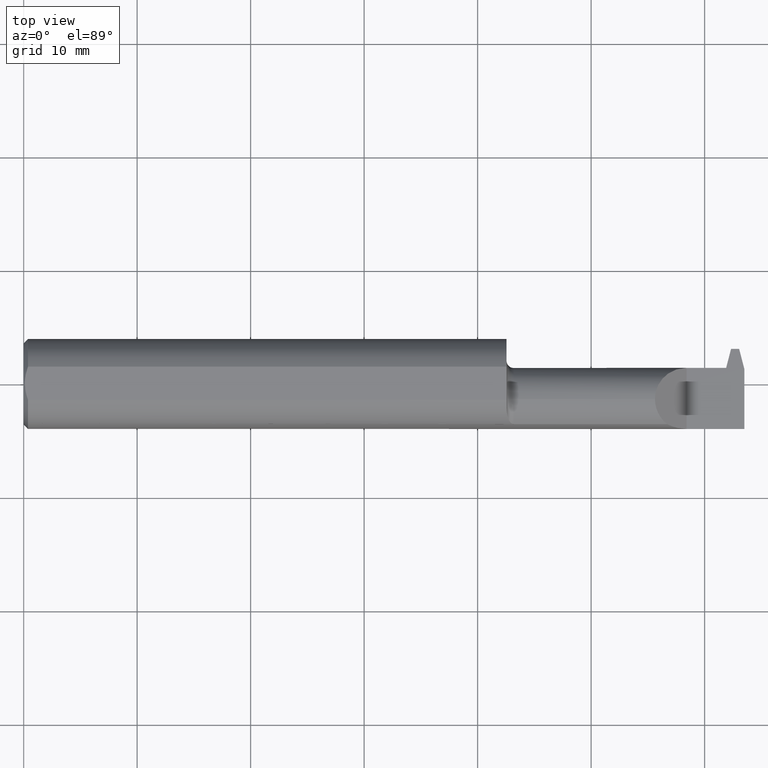
[diagram: clean part render]
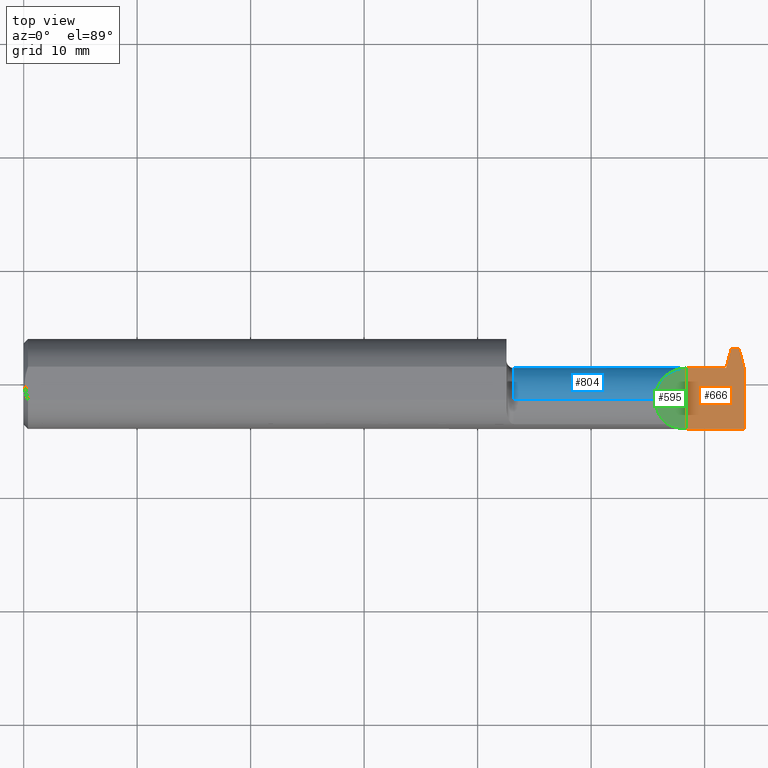
[diagram: same view with three faces highlighted in distinct colors, each labeled with its STEP entity id]
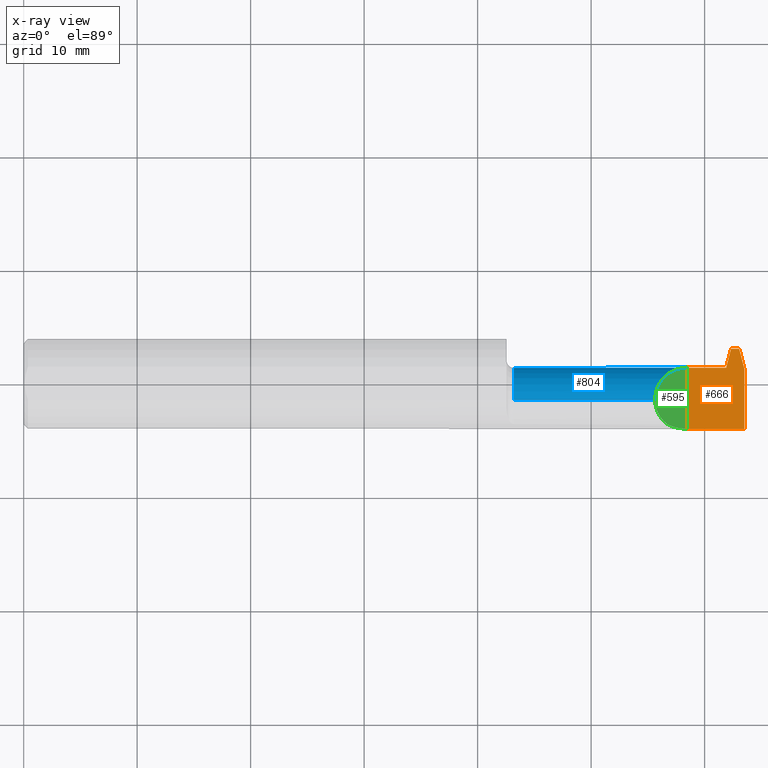
[diagram: x-ray of the same camera — body ghosted, the three highlighted faces saturated]
A machine part, top view with three faces highlighted in distinct colors.
The next image is the same camera in x-ray (body ghosted, the three faces saturated) — at least one of them is partly hidden behind the body in this view.
Their STEP definitions:

[orange] entity #666 — the highlighted planar face has unit normal (-0, 0, -1).
#8 = ORIENTED_EDGE ( 'NONE', *, *, #47, .T. ) ;
#19 = CARTESIAN_POINT ( 'NONE',  ( 2.476310413144170663, 0.1438999999999999724, 0.000000000000000000 ) ) ;
#33 = VECTOR ( 'NONE', #264, 39.37007874015748143 ) ;
#41 = EDGE_CURVE ( 'NONE', #180, #176, #98, .T. ) ;
#42 = LINE ( 'NONE', #484, #33 ) ;
#46 = VECTOR ( 'NONE', #415, 39.37007874015748143 ) ;
#47 = EDGE_CURVE ( 'NONE', #709, #176, #396, .T. ) ;
#59 = VECTOR ( 'NONE', #188, 39.37007874015748143 ) ;
#79 = CARTESIAN_POINT ( 'NONE',  ( 1.675000000000000044, 0.05590000000000001218, -3.918740332231607202E-17 ) ) ;
#98 = LINE ( 'NONE', #376, #457 ) ;
#106 = DIRECTION ( 'NONE',  ( -1.000000000000000000, 0.000000000000000000, 0.000000000000000000 ) ) ;
#116 = DIRECTION ( 'NONE',  ( 0.2503800040544368333, 0.9681476403781088536, -0.000000000000000000 ) ) ;
#122 = LINE ( 'NONE', #552, #610 ) ;
#139 = ORIENTED_EDGE ( 'NONE', *, *, #313, .T. ) ;
#142 = EDGE_CURVE ( 'NONE', #902, #265, #122, .T. ) ;
#146 = EDGE_CURVE ( 'NONE', #771, #180, #42, .T. ) ;
#148 = ORIENTED_EDGE ( 'NONE', *, *, #580, .F. ) ;
#169 = DIRECTION ( 'NONE',  ( -0.000000000000000000, 0.000000000000000000, -1.000000000000000000 ) ) ;
#176 = VERTEX_POINT ( 'NONE', #759 ) ;
#179 = PLANE ( 'NONE',  #589 ) ;
#180 = VERTEX_POINT ( 'NONE', #693 ) ;
#188 = DIRECTION ( 'NONE',  ( -1.000000000000000000, 2.247810050981537545E-15, 0.000000000000000000 ) ) ;
#199 = DIRECTION ( 'NONE',  ( -1.000000000000000000, -0.000000000000000000, -0.000000000000000000 ) ) ;
#202 = LINE ( 'NONE', #79, #275 ) ;
#207 = LINE ( 'NONE', #488, #399 ) ;
#242 = CARTESIAN_POINT ( 'NONE',  ( 2.300000000000000266, 0.05590000000000006075, -3.918740332231607202E-17 ) ) ;
#251 = LINE ( 'NONE', #620, #46 ) ;
#264 = DIRECTION ( 'NONE',  ( 1.000000000000000000, 4.268512490100399076E-16, -0.000000000000000000 ) ) ;
#265 = VERTEX_POINT ( 'NONE', #272 ) ;
#272 = CARTESIAN_POINT ( 'NONE',  ( 2.300000000000000266, -0.1560999999999999888, -3.918740332231607202E-17 ) ) ;
#275 = VECTOR ( 'NONE', #283, 39.37007874015748143 ) ;
#280 = EDGE_LOOP ( 'NONE', ( #8, #486, #669, #628, #469, #573, #139, #148 ) ) ;
#283 = DIRECTION ( 'NONE',  ( 1.000000000000000000, 0.000000000000000000, 0.000000000000000000 ) ) ;
#313 = EDGE_CURVE ( 'NONE', #902, #808, #251, .T. ) ;
#317 = EDGE_CURVE ( 'NONE', #265, #649, #207, .T. ) ;
#363 = CARTESIAN_POINT ( 'NONE',  ( 2.500000000000000000, -0.1561000000000000165, -3.918740332231607202E-17 ) ) ;
#376 = CARTESIAN_POINT ( 'NONE',  ( 2.459689586855829280, 0.1438999999999999724, 0.000000000000000000 ) ) ;
#396 = LINE ( 'NONE', #401, #59 ) ;
#399 = VECTOR ( 'NONE', #683, 39.37007874015748143 ) ;
#401 = CARTESIAN_POINT ( 'NONE',  ( 2.300000000000000266, 0.1219000000000004108, -3.918740332231607202E-17 ) ) ;
#415 = DIRECTION ( 'NONE',  ( -0.000000000000000000, 1.000000000000000000, -0.000000000000000000 ) ) ;
#434 = LINE ( 'NONE', #19, #483 ) ;
#445 = EDGE_CURVE ( 'NONE', #649, #771, #202, .T. ) ;
#457 = VECTOR ( 'NONE', #116, 39.37007874015748854 ) ;
#469 = ORIENTED_EDGE ( 'NONE', *, *, #317, .F. ) ;
#483 = VECTOR ( 'NONE', #579, 39.37007874015748854 ) ;
#484 = CARTESIAN_POINT ( 'NONE',  ( 2.436931239432511553, 0.05590000000000006075, 0.000000000000000000 ) ) ;
#486 = ORIENTED_EDGE ( 'NONE', *, *, #41, .F. ) ;
#488 = CARTESIAN_POINT ( 'NONE',  ( 2.300000000000000266, 0.1650000000000000078, -3.918740332231607202E-17 ) ) ;
#550 = CARTESIAN_POINT ( 'NONE',  ( 2.500000000000000000, 0.05229916429182325521, 0.000000000000000000 ) ) ;
#552 = CARTESIAN_POINT ( 'NONE',  ( 2.500000000000000000, -0.1560999999999999888, -3.918740332231607202E-17 ) ) ;
#573 = ORIENTED_EDGE ( 'NONE', *, *, #142, .F. ) ;
#579 = DIRECTION ( 'NONE',  ( 0.2503800040544402195, -0.9681476403781079654, 0.000000000000000000 ) ) ;
#580 = EDGE_CURVE ( 'NONE', #709, #808, #434, .T. ) ;
#589 = AXIS2_PLACEMENT_3D ( 'NONE', #877, #169, #106 ) ;
#610 = VECTOR ( 'NONE', #199, 39.37007874015748143 ) ;
#620 = CARTESIAN_POINT ( 'NONE',  ( 2.500000000000000000, 0.1650000000000000078, -3.918740332231607202E-17 ) ) ;
#628 = ORIENTED_EDGE ( 'NONE', *, *, #445, .F. ) ;
#649 = VERTEX_POINT ( 'NONE', #242 ) ;
#666 = ADVANCED_FACE ( 'NONE', ( #818 ), #179, .F. ) ;
#669 = ORIENTED_EDGE ( 'NONE', *, *, #146, .F. ) ;
#682 = CARTESIAN_POINT ( 'NONE',  ( 2.416931239432511092, 0.05590000000000005381, 0.000000000000000000 ) ) ;
#683 = DIRECTION ( 'NONE',  ( -0.000000000000000000, 1.000000000000000000, -0.000000000000000000 ) ) ;
#693 = CARTESIAN_POINT ( 'NONE',  ( 2.436931239432511553, 0.05590000000000006075, 0.000000000000000000 ) ) ;
#709 = VERTEX_POINT ( 'NONE', #805 ) ;
#759 = CARTESIAN_POINT ( 'NONE',  ( 2.453999999999999737, 0.1219000000000000777, 0.000000000000000000 ) ) ;
#771 = VERTEX_POINT ( 'NONE', #682 ) ;
#805 = CARTESIAN_POINT ( 'NONE',  ( 2.482000000000000650, 0.1219000000000000083, 0.000000000000000000 ) ) ;
#808 = VERTEX_POINT ( 'NONE', #550 ) ;
#818 = FACE_OUTER_BOUND ( 'NONE', #280, .T. ) ;
#877 = CARTESIAN_POINT ( 'NONE',  ( 2.300000000000000266, 0.1650000000000000078, -3.918740332231607202E-17 ) ) ;
#902 = VERTEX_POINT ( 'NONE', #363 ) ;

[blue] entity #804 — the highlighted cylindrical surface (edge-blend (fillet) strip) has radius 2.794 mm, axis along (-1, -0, -0).
#4 = CARTESIAN_POINT ( 'NONE',  ( 2.457659549259122667, -0.05410000000000000225, -0.1100000000000000006 ) ) ;
#5 = CARTESIAN_POINT ( 'NONE',  ( 2.413720460968152626, 0.05589999999999999830, -0.01528912821151733568 ) ) ;
#20 = EDGE_CURVE ( 'NONE', #437, #879, #369, .T. ) ;
#22 = VECTOR ( 'NONE', #170, 39.37007874015748143 ) ;
#40 = CYLINDRICAL_SURFACE ( 'NONE', #160, 0.1100000000000000006 ) ;
#53 = VERTEX_POINT ( 'NONE', #901 ) ;
#64 = CARTESIAN_POINT ( 'NONE',  ( 1.675000000000000044, -0.05409999999999999531, 0.1100000000000000006 ) ) ;
#79 = CARTESIAN_POINT ( 'NONE',  ( 1.675000000000000044, 0.05590000000000001218, -3.918740332231607202E-17 ) ) ;
#80 = VERTEX_POINT ( 'NONE', #532 ) ;
#88 = DIRECTION ( 'NONE',  ( -1.000000000000000000, -0.000000000000000000, -0.000000000000000000 ) ) ;
#125 = CARTESIAN_POINT ( 'NONE',  ( 2.443435339008330320, -0.03363394074619028423, -0.1080793246584172140 ) ) ;
#131 = CARTESIAN_POINT ( 'NONE',  ( 2.189999999999999947, -0.05409999999999999531, 0.1100000000000000006 ) ) ;
#134 = ORIENTED_EDGE ( 'NONE', *, *, #445, .T. ) ;
#137 = LINE ( 'NONE', #64, #492 ) ;
#143 = CARTESIAN_POINT ( 'NONE',  ( 1.699999999999999956, -0.05409999999999999531, 0.000000000000000000 ) ) ;
#145 = DIRECTION ( 'NONE',  ( -1.000000000000000000, -0.000000000000000000, -0.000000000000000000 ) ) ;
#160 = AXIS2_PLACEMENT_3D ( 'NONE', #476, #323, #186 ) ;
#170 = DIRECTION ( 'NONE',  ( -1.000000000000000000, -0.000000000000000000, -0.000000000000000000 ) ) ;
#186 = DIRECTION ( 'NONE',  ( 0.000000000000000000, 0.000000000000000000, 1.000000000000000000 ) ) ;
#191 = DIRECTION ( 'NONE',  ( 1.000000000000000000, 0.000000000000000000, 0.000000000000000000 ) ) ;
#197 = CARTESIAN_POINT ( 'NONE',  ( 2.450468519194640038, 0.01720710617663996633, -0.08823817868278836796 ) ) ;
#202 = LINE ( 'NONE', #79, #275 ) ;
#206 = FACE_OUTER_BOUND ( 'NONE', #458, .T. ) ;
#220 = CARTESIAN_POINT ( 'NONE',  ( 2.447935725133934870, 0.03387289330930214754, -0.06603612680033670024 ) ) ;
#226 = LINE ( 'NONE', #796, #749 ) ;
#230 = EDGE_CURVE ( 'NONE', #80, #704, #441, .T. ) ;
#231 = ORIENTED_EDGE ( 'NONE', *, *, #576, .F. ) ;
#242 = CARTESIAN_POINT ( 'NONE',  ( 2.300000000000000266, 0.05590000000000006075, -3.918740332231607202E-17 ) ) ;
#259 =( BOUNDED_CURVE ( )  B_SPLINE_CURVE ( 3, ( #555, #758, #774, #131 ),
 .UNSPECIFIED., .F., .F. ) 
 B_SPLINE_CURVE_WITH_KNOTS ( ( 4, 4 ),
 ( 4.712388980384687009, 6.283185307179586232 ),
 .UNSPECIFIED. ) 
 CURVE ( )  GEOMETRIC_REPRESENTATION_ITEM ( )  RATIONAL_B_SPLINE_CURVE ( ( 1.000000000000000000, 0.8047378541243643824, 0.8047378541243643824, 1.000000000000000000 ) ) 
 REPRESENTATION_ITEM ( '' )  );
#275 = VECTOR ( 'NONE', #283, 39.37007874015748143 ) ;
#282 = CARTESIAN_POINT ( 'NONE',  ( 2.453019872896905262, 0.01270421248208681436, -0.09423690401342106615 ) ) ;
#283 = DIRECTION ( 'NONE',  ( 1.000000000000000000, 0.000000000000000000, 0.000000000000000000 ) ) ;
#286 = CARTESIAN_POINT ( 'NONE',  ( 2.457659549259122667, -0.05410000000000000225, -0.1100000000000000006 ) ) ;
#287 = DIRECTION ( 'NONE',  ( 0.000000000000000000, 0.000000000000000000, -1.000000000000000000 ) ) ;
#291 = VECTOR ( 'NONE', #191, 39.37007874015748143 ) ;
#296 = EDGE_CURVE ( 'NONE', #53, #704, #137, .T. ) ;
#323 = DIRECTION ( 'NONE',  ( -1.000000000000000000, -0.000000000000000000, -0.000000000000000000 ) ) ;
#324 = EDGE_CURVE ( 'NONE', #649, #53, #259, .T. ) ;
#333 = CARTESIAN_POINT ( 'NONE',  ( 2.447935725133934870, 0.03387289330930214754, -0.06603612680033670024 ) ) ;
#361 =( BOUNDED_CURVE ( )  B_SPLINE_CURVE ( 3, ( #713, #638, #5, #652 ),
 .UNSPECIFIED., .F., .F. ) 
 B_SPLINE_CURVE_WITH_KNOTS ( ( 4, 4 ),
 ( 1.156804228221842479, 1.570796326794896780 ),
 .UNSPECIFIED. ) 
 CURVE ( )  GEOMETRIC_REPRESENTATION_ITEM ( )  RATIONAL_B_SPLINE_CURVE ( ( 1.000000000000000000, 0.9857684695413673204, 0.9857684695413673204, 1.000000000000000000 ) ) 
 REPRESENTATION_ITEM ( '' )  );
#362 = ORIENTED_EDGE ( 'NONE', *, *, #400, .F. ) ;
#369 = LINE ( 'NONE', #806, #22 ) ;
#382 = ORIENTED_EDGE ( 'NONE', *, *, #880, .F. ) ;
#400 = EDGE_CURVE ( 'NONE', #412, #607, #481, .T. ) ;
#403 = LINE ( 'NONE', #766, #291 ) ;
#412 = VERTEX_POINT ( 'NONE', #625 ) ;
#430 = CARTESIAN_POINT ( 'NONE',  ( 2.433435339008330534, -0.05409999999999999531, 0.000000000000000000 ) ) ;
#432 = ORIENTED_EDGE ( 'NONE', *, *, #544, .T. ) ;
#437 = VERTEX_POINT ( 'NONE', #840 ) ;
#441 = CIRCLE ( 'NONE', #474, 0.1100000000000000006 ) ;
#444 = CARTESIAN_POINT ( 'NONE',  ( 1.699999999999999956, -0.05409999999999999531, 0.1100000000000000006 ) ) ;
#445 = EDGE_CURVE ( 'NONE', #649, #771, #202, .T. ) ;
#455 = VERTEX_POINT ( 'NONE', #286 ) ;
#458 = EDGE_LOOP ( 'NONE', ( #382, #907, #569, #727, #849, #134, #231, #776, #432, #742, #362 ) ) ;
#474 = AXIS2_PLACEMENT_3D ( 'NONE', #143, #785, #287 ) ;
#476 = CARTESIAN_POINT ( 'NONE',  ( 1.675000000000000044, -0.05409999999999999531, 0.000000000000000000 ) ) ;
#477 = CARTESIAN_POINT ( 'NONE',  ( 2.448897566187477448, -0.006357552722326263728, -0.1029142278622389300 ) ) ;
#481 =( BOUNDED_CURVE ( )  B_SPLINE_CURVE ( 3, ( #333, #197, #477, #125 ),
 .UNSPECIFIED., .F., .T. ) 
 B_SPLINE_CURVE_WITH_KNOTS ( ( 4, 4 ),
 ( 2.912839731440067137, 3.652578767003593629 ),
 .UNSPECIFIED. ) 
 CURVE ( )  GEOMETRIC_REPRESENTATION_ITEM ( )  RATIONAL_B_SPLINE_CURVE ( ( 1.000000000000000000, 0.9549163480352609312, 0.9549163480352609312, 1.000000000000000000 ) ) 
 REPRESENTATION_ITEM ( '' )  );
#492 = VECTOR ( 'NONE', #635, 39.37007874015748143 ) ;
#503 = EDGE_CURVE ( 'NONE', #455, #80, #226, .T. ) ;
#532 = CARTESIAN_POINT ( 'NONE',  ( 1.699999999999999956, -0.05409999999999997450, -0.1100000000000000006 ) ) ;
#544 = EDGE_CURVE ( 'NONE', #437, #637, #861, .T. ) ;
#555 = CARTESIAN_POINT ( 'NONE',  ( 2.300000000000000266, 0.05590000000000006075, -3.918740332231607202E-17 ) ) ;
#569 = ORIENTED_EDGE ( 'NONE', *, *, #230, .T. ) ;
#570 = CARTESIAN_POINT ( 'NONE',  ( 2.407638684877114965, 0.04660744544460398986, -0.04424941165735551268 ) ) ;
#576 = EDGE_CURVE ( 'NONE', #879, #771, #361, .T. ) ;
#604 = CARTESIAN_POINT ( 'NONE',  ( 2.443435339008330320, -0.03363394074619028423, -0.1080793246584172140 ) ) ;
#607 = VERTEX_POINT ( 'NONE', #604 ) ;
#625 = CARTESIAN_POINT ( 'NONE',  ( 2.447935725133934870, 0.03387289330930214754, -0.06603612680033670024 ) ) ;
#635 = DIRECTION ( 'NONE',  ( -1.000000000000000000, -0.000000000000000000, -0.000000000000000000 ) ) ;
#637 = VERTEX_POINT ( 'NONE', #887 ) ;
#638 = CARTESIAN_POINT ( 'NONE',  ( 2.410578223941060916, 0.05275776297290870470, -0.03025187488229246977 ) ) ;
#645 =( BOUNDED_CURVE ( )  B_SPLINE_CURVE ( 3, ( #4, #647, #282, #220 ),
 .UNSPECIFIED., .F., .T. ) 
 B_SPLINE_CURVE_WITH_KNOTS ( ( 4, 4 ),
 ( 3.348588702876318379, 4.275473325823774928 ),
 .UNSPECIFIED. ) 
 CURVE ( )  GEOMETRIC_REPRESENTATION_ITEM ( )  RATIONAL_B_SPLINE_CURVE ( ( 1.000000000000000000, 0.9296793226638385699, 0.9296793226638385699, 1.000000000000000000 ) ) 
 REPRESENTATION_ITEM ( '' )  );
#647 = CARTESIAN_POINT ( 'NONE',  ( 2.456506316694653247, -0.01883816676083708772, -0.1100000000000000006 ) ) ;
#649 = VERTEX_POINT ( 'NONE', #242 ) ;
#652 = CARTESIAN_POINT ( 'NONE',  ( 2.416931239432511092, 0.05590000000000005381, 0.000000000000000000 ) ) ;
#682 = CARTESIAN_POINT ( 'NONE',  ( 2.416931239432511092, 0.05590000000000005381, 0.000000000000000000 ) ) ;
#704 = VERTEX_POINT ( 'NONE', #444 ) ;
#713 = CARTESIAN_POINT ( 'NONE',  ( 2.407638684877114965, 0.04660744544460398986, -0.04424941165735551268 ) ) ;
#727 = ORIENTED_EDGE ( 'NONE', *, *, #296, .F. ) ;
#740 = EDGE_CURVE ( 'NONE', #637, #607, #403, .T. ) ;
#742 = ORIENTED_EDGE ( 'NONE', *, *, #740, .T. ) ;
#749 = VECTOR ( 'NONE', #88, 39.37007874015748143 ) ;
#758 = CARTESIAN_POINT ( 'NONE',  ( 2.235563491861040308, 0.05590000000000019259, 0.06443650813895937524 ) ) ;
#766 = CARTESIAN_POINT ( 'NONE',  ( 1.675000000000000044, -0.03363394074619028423, -0.1080793246584172140 ) ) ;
#771 = VERTEX_POINT ( 'NONE', #682 ) ;
#774 = CARTESIAN_POINT ( 'NONE',  ( 2.189999999999999947, 0.01033650813895969217, 0.1100000000000000283 ) ) ;
#776 = ORIENTED_EDGE ( 'NONE', *, *, #20, .F. ) ;
#785 = DIRECTION ( 'NONE',  ( 1.000000000000000000, 0.000000000000000000, 0.000000000000000000 ) ) ;
#796 = CARTESIAN_POINT ( 'NONE',  ( 1.675000000000000044, -0.05409999999999997450, -0.1100000000000000006 ) ) ;
#804 = ADVANCED_FACE ( 'NONE', ( #206 ), #40, .T. ) ;
#806 = CARTESIAN_POINT ( 'NONE',  ( 1.675000000000000044, 0.04660744544460338618, -0.04424941165735690740 ) ) ;
#811 = AXIS2_PLACEMENT_3D ( 'NONE', #430, #145, #860 ) ;
#840 = CARTESIAN_POINT ( 'NONE',  ( 2.433435339008330534, 0.04660744544460401068, -0.04424941165735549187 ) ) ;
#849 = ORIENTED_EDGE ( 'NONE', *, *, #324, .F. ) ;
#860 = DIRECTION ( 'NONE',  ( 0.000000000000000000, -3.570028628083980320E-15, -1.000000000000000000 ) ) ;
#861 = CIRCLE ( 'NONE', #811, 0.1100000000000000006 ) ;
#879 = VERTEX_POINT ( 'NONE', #570 ) ;
#880 = EDGE_CURVE ( 'NONE', #455, #412, #645, .T. ) ;
#887 = CARTESIAN_POINT ( 'NONE',  ( 2.433435339008330534, -0.03363394074619025648, -0.1080793246584172002 ) ) ;
#901 = CARTESIAN_POINT ( 'NONE',  ( 2.189999999999999947, -0.05409999999999999531, 0.1100000000000000006 ) ) ;
#907 = ORIENTED_EDGE ( 'NONE', *, *, #503, .T. ) ;

[green] entity #595 — the highlighted planar face has unit normal (-0.7071, 0, -0.7071).
#30 = CARTESIAN_POINT ( 'NONE',  ( 2.154900000000000038, 0.1000000000000000056, 0.1450999999999999790 ) ) ;
#36 = VERTEX_POINT ( 'NONE', #592 ) ;
#49 = ORIENTED_EDGE ( 'NONE', *, *, #236, .F. ) ;
#53 = VERTEX_POINT ( 'NONE', #901 ) ;
#131 = CARTESIAN_POINT ( 'NONE',  ( 2.189999999999999947, -0.05409999999999999531, 0.1100000000000000006 ) ) ;
#147 = CARTESIAN_POINT ( 'NONE',  ( 2.300000000000000266, -0.1560999999999999888, -3.918740332231607202E-17 ) ) ;
#150 = CARTESIAN_POINT ( 'NONE',  ( 2.204937869678032847, -0.1191917229287704216, 0.09506213032196700330 ) ) ;
#178 = ORIENTED_EDGE ( 'NONE', *, *, #317, .T. ) ;
#207 = LINE ( 'NONE', #488, #399 ) ;
#213 = CARTESIAN_POINT ( 'NONE',  ( 2.276279741160605941, -0.1561000000000000165, 0.02372025883939345506 ) ) ;
#236 = EDGE_CURVE ( 'NONE', #265, #36, #582, .T. ) ;
#242 = CARTESIAN_POINT ( 'NONE',  ( 2.300000000000000266, 0.05590000000000006075, -3.918740332231607202E-17 ) ) ;
#259 =( BOUNDED_CURVE ( )  B_SPLINE_CURVE ( 3, ( #555, #758, #774, #131 ),
 .UNSPECIFIED., .F., .F. ) 
 B_SPLINE_CURVE_WITH_KNOTS ( ( 4, 4 ),
 ( 4.712388980384687009, 6.283185307179586232 ),
 .UNSPECIFIED. ) 
 CURVE ( )  GEOMETRIC_REPRESENTATION_ITEM ( )  RATIONAL_B_SPLINE_CURVE ( ( 1.000000000000000000, 0.8047378541243643824, 0.8047378541243643824, 1.000000000000000000 ) ) 
 REPRESENTATION_ITEM ( '' )  );
#265 = VERTEX_POINT ( 'NONE', #272 ) ;
#272 = CARTESIAN_POINT ( 'NONE',  ( 2.300000000000000266, -0.1560999999999999888, -3.918740332231607202E-17 ) ) ;
#292 = CARTESIAN_POINT ( 'NONE',  ( 2.189999999999999947, -0.05409999999999999531, 0.1100000000000000006 ) ) ;
#298 = ORIENTED_EDGE ( 'NONE', *, *, #324, .T. ) ;
#312 = DIRECTION ( 'NONE',  ( -0.7071067811865461294, 0.000000000000000000, 0.7071067811865487940 ) ) ;
#316 = PLANE ( 'NONE',  #603 ) ;
#317 = EDGE_CURVE ( 'NONE', #265, #649, #207, .T. ) ;
#324 = EDGE_CURVE ( 'NONE', #649, #53, #259, .T. ) ;
#375 = DIRECTION ( 'NONE',  ( -0.7071067811865489050, 0.000000000000000000, -0.7071067811865462405 ) ) ;
#399 = VECTOR ( 'NONE', #683, 39.37007874015748143 ) ;
#447 =( BOUNDED_CURVE ( )  B_SPLINE_CURVE ( 3, ( #292, #496, #150, #857 ),
 .UNSPECIFIED., .F., .T. ) 
 B_SPLINE_CURVE_WITH_KNOTS ( ( 4, 4 ),
 ( 0.000000000000000000, 0.9023340896873542905 ),
 .UNSPECIFIED. ) 
 CURVE ( )  GEOMETRIC_REPRESENTATION_ITEM ( )  RATIONAL_B_SPLINE_CURVE ( ( 1.000000000000000000, 0.9332925766550594915, 0.9332925766550594915, 1.000000000000000000 ) ) 
 REPRESENTATION_ITEM ( '' )  );
#461 = FACE_OUTER_BOUND ( 'NONE', #813, .T. ) ;
#485 = EDGE_CURVE ( 'NONE', #53, #36, #447, .T. ) ;
#488 = CARTESIAN_POINT ( 'NONE',  ( 2.300000000000000266, 0.1650000000000000078, -3.918740332231607202E-17 ) ) ;
#493 = CARTESIAN_POINT ( 'NONE',  ( 2.253162613644221768, -0.1507850122484572508, 0.04683738635577809617 ) ) ;
#496 = CARTESIAN_POINT ( 'NONE',  ( 2.189999999999999947, -0.08835990389925882371, 0.1100000000000000283 ) ) ;
#505 = CARTESIAN_POINT ( 'NONE',  ( 2.231824208644646479, -0.1404253234750460488, 0.06817579135535328794 ) ) ;
#555 = CARTESIAN_POINT ( 'NONE',  ( 2.300000000000000266, 0.05590000000000006075, -3.918740332231607202E-17 ) ) ;
#582 =( BOUNDED_CURVE ( )  B_SPLINE_CURVE ( 3, ( #147, #213, #493, #505 ),
 .UNSPECIFIED., .F., .T. ) 
 B_SPLINE_CURVE_WITH_KNOTS ( ( 4, 4 ),
 ( 4.712388980384687898, 5.164365393897303314 ),
 .UNSPECIFIED. ) 
 CURVE ( )  GEOMETRIC_REPRESENTATION_ITEM ( )  RATIONAL_B_SPLINE_CURVE ( ( 1.000000000000000000, 0.9830487706143840043, 0.9830487706143840043, 1.000000000000000000 ) ) 
 REPRESENTATION_ITEM ( '' )  );
#592 = CARTESIAN_POINT ( 'NONE',  ( 2.231824208644646479, -0.1404253234750460488, 0.06817579135535328794 ) ) ;
#595 = ADVANCED_FACE ( 'NONE', ( #461 ), #316, .F. ) ;
#603 = AXIS2_PLACEMENT_3D ( 'NONE', #30, #375, #312 ) ;
#649 = VERTEX_POINT ( 'NONE', #242 ) ;
#683 = DIRECTION ( 'NONE',  ( -0.000000000000000000, 1.000000000000000000, -0.000000000000000000 ) ) ;
#720 = ORIENTED_EDGE ( 'NONE', *, *, #485, .T. ) ;
#758 = CARTESIAN_POINT ( 'NONE',  ( 2.235563491861040308, 0.05590000000000019259, 0.06443650813895937524 ) ) ;
#774 = CARTESIAN_POINT ( 'NONE',  ( 2.189999999999999947, 0.01033650813895969217, 0.1100000000000000283 ) ) ;
#813 = EDGE_LOOP ( 'NONE', ( #178, #298, #720, #49 ) ) ;
#857 = CARTESIAN_POINT ( 'NONE',  ( 2.231824208644646479, -0.1404253234750460488, 0.06817579135535328794 ) ) ;
#901 = CARTESIAN_POINT ( 'NONE',  ( 2.189999999999999947, -0.05409999999999999531, 0.1100000000000000006 ) ) ;